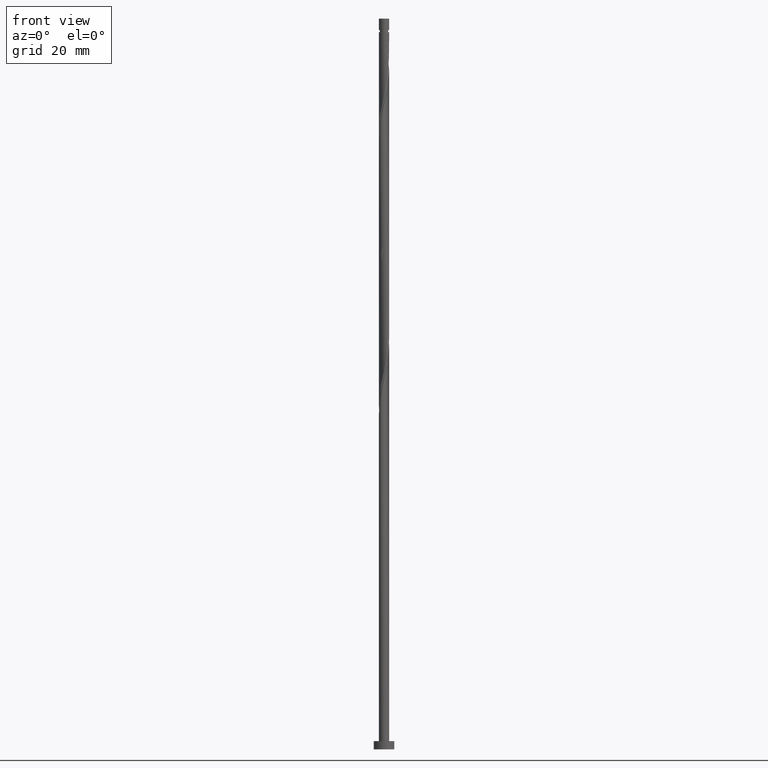
[diagram: clean part render]
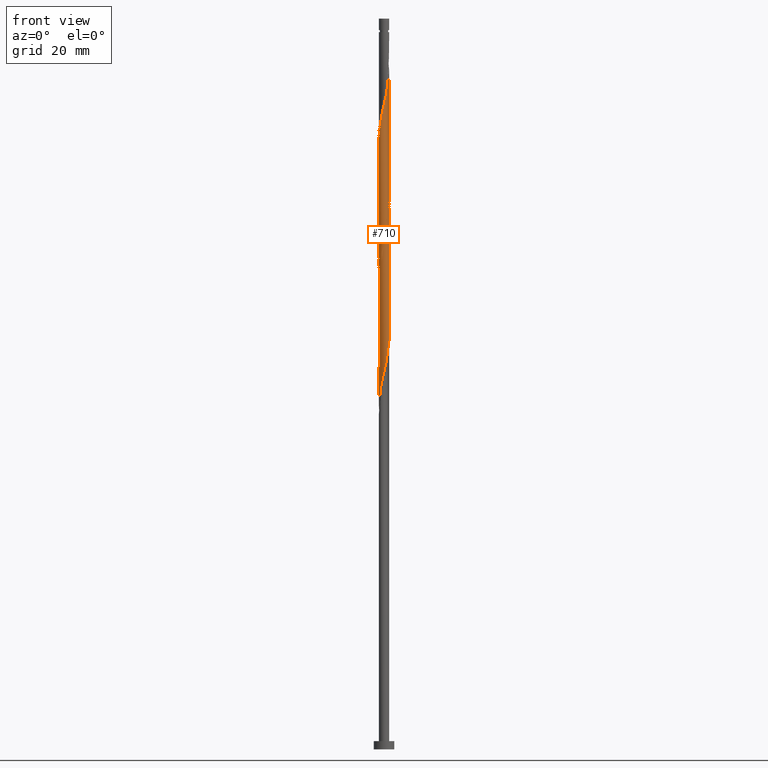
[diagram: same view with one face highlighted and labeled with its STEP entity id]
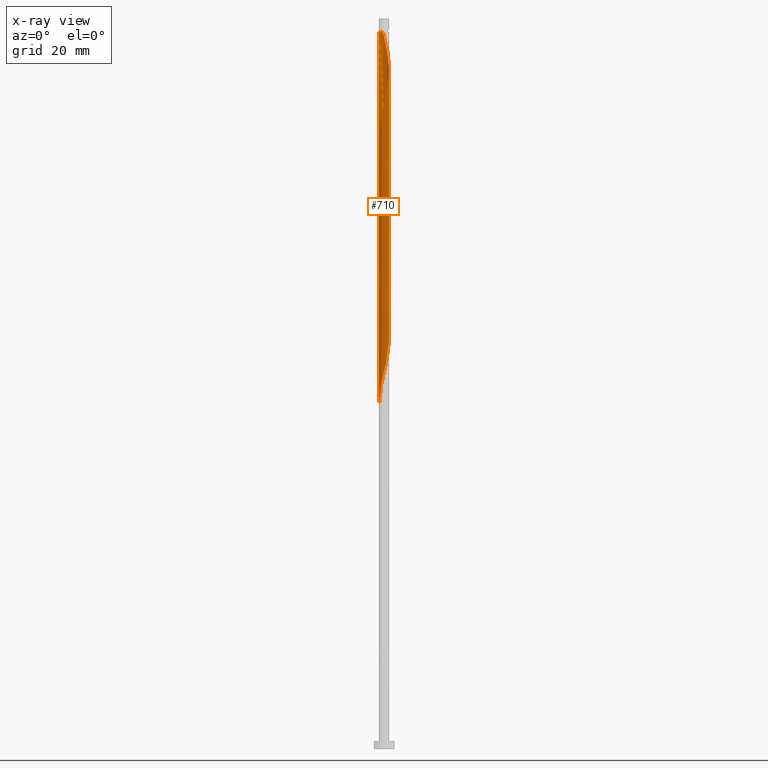
[diagram: x-ray of the same camera — body ghosted, the highlighted face saturated]
A machine part, front view. The second image highlights one B-rep face of the part: STEP entity #710.
The next image is the same camera in x-ray: the body ghosted, the highlighted face saturated — about 0% of this face is hidden behind the body in this view.
In plain terms, the highlighted cylindrical surface (bore or boss wall) has radius 1.25 mm, axis along (-0, -0, -1).
Its self-contained STEP definition (entity closure, byte-faithful):
#37 = CARTESIAN_POINT ( 'NONE',  ( 1.249999999999999778, -0.1256297269074015399, 132.8760128829884195 ) ) ;
#38 = CARTESIAN_POINT ( 'NONE',  ( 0.5531206224436048258, 1.132978120250636156, 170.5403170414120666 ) ) ;
#44 = CARTESIAN_POINT ( 'NONE',  ( 0.07678231466697284235, -1.247639561794343432, 125.4014281525231667 ) ) ;
#45 = CARTESIAN_POINT ( 'NONE',  ( 0.07678231466697481300, 1.247639561794345431, 172.6236503747453810 ) ) ;
#51 = EDGE_CURVE ( 'NONE', #1464, #522, #1592, .T. ) ;
#54 = CARTESIAN_POINT ( 'NONE',  ( -0.9365076899976109148, -0.8279210992451776496, 151.7903170414120666 ) ) ;
#55 = VERTEX_POINT ( 'NONE', #589 ) ;
#59 = CIRCLE ( 'NONE', #215, 1.249999999999990674 ) ;
#63 = CARTESIAN_POINT ( 'NONE',  ( -0.6903152159601410043, 1.042096397946900010, 111.5125392636342667 ) ) ;
#70 = CARTESIAN_POINT ( 'NONE',  ( -0.8279210992451769835, -0.9365076899976088054, 121.2347614858565095 ) ) ;
#71 = CARTESIAN_POINT ( 'NONE',  ( 1.042096397946900899, -0.6903152159601431137, 161.5125392636342951 ) ) ;
#95 = CARTESIAN_POINT ( 'NONE',  ( 1.224999999999999645, -0.2487468592766561293, 99.01253926363429514 ) ) ;
#109 = CARTESIAN_POINT ( 'NONE',  ( -0.5573243458342023171, -1.118878712613872839, 89.29031704141208081 ) ) ;
#113 = AXIS2_PLACEMENT_3D ( 'NONE', #611, #1215, #1359 ) ;
#143 = DIRECTION ( 'NONE',  ( -0.000000000000000000, -0.000000000000000000, -1.000000000000000000 ) ) ;
#159 = CARTESIAN_POINT ( 'NONE',  ( 0.8275098094766818457, 0.9512146756431651973, 169.1514281525230956 ) ) ;
#164 = CARTESIAN_POINT ( 'NONE',  ( 1.185254549274265434, 0.3970789007548220506, 135.1236503747453810 ) ) ;
#166 = CARTESIAN_POINT ( 'NONE',  ( 0.5531206224436024943, -1.132978120250634602, 127.4847614858564953 ) ) ;
#167 = CARTESIAN_POINT ( 'NONE',  ( 0.8279210992451776496, -0.9365076899976111369, 160.1236503747453526 ) ) ;
#172 = CARTESIAN_POINT ( 'NONE',  ( -0.3970789007548228278, 1.185254549274265212, 143.4569837080787238 ) ) ;
#174 = CARTESIAN_POINT ( 'NONE',  ( 1.192251854709206915, -0.4100211688212168082, 131.6514281525231809 ) ) ;
#175 = CARTESIAN_POINT ( 'NONE',  ( -1.118878712613875059, -0.5573243458342029832, 150.4014281525231240 ) ) ;
#180 = CARTESIAN_POINT ( 'NONE',  ( -1.247639561794343210, -0.07678231466697323093, 117.0680948191898523 ) ) ;
#181 = CARTESIAN_POINT ( 'NONE',  ( 1.185254549274266767, -0.3970789007548243266, 162.9014281525231524 ) ) ;
#188 = DIRECTION ( 'NONE',  ( -0.000000000000000000, -0.000000000000000000, -1.000000000000000000 ) ) ;
#204 = CARTESIAN_POINT ( 'NONE',  ( 1.237530978297895379, 0.2410371790660420788, 101.0958725969675953 ) ) ;
#213 = CARTESIAN_POINT ( 'NONE',  ( -0.8279210992451769835, -0.9365076899976088054, 87.90142815252316666 ) ) ;
#215 = AXIS2_PLACEMENT_3D ( 'NONE', #218, #966, #604 ) ;
#218 = CARTESIAN_POINT ( 'NONE',  ( 0.000000000000000000, 0.000000000000000000, 174.0125392636342667 ) ) ;
#222 = CARTESIAN_POINT ( 'NONE',  ( -1.042096397946899566, -0.6903152159601410043, 86.51253926363423830 ) ) ;
#234 = ORIENTED_EDGE ( 'NONE', *, *, #323, .T. ) ;
#240 = VERTEX_POINT ( 'NONE', #305 ) ;
#241 = ORIENTED_EDGE ( 'NONE', *, *, #51, .F. ) ;
#251 =( BOUNDED_CURVE ( )  B_SPLINE_CURVE ( 2, ( #801, #435, #1538, #525, #793, #941, #1191, #1043, #405, #1298, #172, #1056, #1036, #1447, #427, #1429, #311, #1416, #808, #540, #783, #1290, #164, #663, #654, #532, #1178 ),
 .UNSPECIFIED., .F., .T. ) 
 B_SPLINE_CURVE_WITH_KNOTS ( ( 3, 2, 2, 2, 2, 2, 2, 2, 2, 2, 2, 2, 2, 3 ),
 ( 0.4295317669814461836, 0.4375000000000000000, 0.4479166666666666852, 0.4583333333333333148, 0.4687500000000000000, 0.4791666666666666852, 0.4895833333333333148, 0.5000000000000000000, 0.5104166666666666297, 0.5208333333333333703, 0.5312500000000000000, 0.5416666666666666297, 0.5520833333333333703, 0.5545317669814462391 ),
 .UNSPECIFIED. ) 
 CURVE ( )  GEOMETRIC_REPRESENTATION_ITEM ( )  RATIONAL_B_SPLINE_CURVE ( ( 0.9062941362546590440, 0.9031415850403631262, 0.9090909090909385926, 0.9013135103398568493, 0.9090909090909385926, 0.9013135103398568493, 0.9090909090909385926, 0.9013135103398568493, 0.9090909090909385926, 0.9013135103398568493, 0.9090909090909385926, 0.9013135103398568493, 0.9090909090909385926, 0.9013135103398568493, 0.9090909090909385926, 0.9013135103398568493, 0.9090909090909385926, 0.9013135103398568493, 0.9090909090909385926, 0.9013135103398568493, 0.9090909090909385926, 0.9013135103398568493, 0.9090909090909385926, 0.9013135103398568493, 0.9090909090909385926, 0.9072628343904323156, 0.9062941362546588220 ) ) 
 REPRESENTATION_ITEM ( '' )  );
#282 = CARTESIAN_POINT ( 'NONE',  ( 0.3970789007548225502, -1.185254549274265434, 126.7903170414120524 ) ) ;
#283 = CARTESIAN_POINT ( 'NONE',  ( -0.07678231466697406360, -1.247639561794345431, 155.9569837080787238 ) ) ;
#290 = CARTESIAN_POINT ( 'NONE',  ( 1.250000000000000000, 1.080410926051534201E-15, 133.4094392521777195 ) ) ;
#299 = CARTESIAN_POINT ( 'NONE',  ( -0.8275098094766792922, 0.9512146756431647532, 112.2069837080787096 ) ) ;
#300 = CARTESIAN_POINT ( 'NONE',  ( 0.2410371790660443270, 1.237530978297896933, 171.9292059303009808 ) ) ;
#305 = CARTESIAN_POINT ( 'NONE',  ( -0.2487468592766901576, 1.225000000000343592, 174.0125392636342383 ) ) ;
#311 = CARTESIAN_POINT ( 'NONE',  ( 0.5573243458342032053, 1.118878712613872395, 139.2903170414120098 ) ) ;
#314 = CARTESIAN_POINT ( 'NONE',  ( 0.9365076899976088054, -0.8279210992451772055, 129.5680948191898096 ) ) ;
#315 = CARTESIAN_POINT ( 'NONE',  ( -0.8275098094766812906, -0.9512146756431656414, 152.4847614858564953 ) ) ;
#323 = EDGE_CURVE ( 'NONE', #472, #1108, #445, .T. ) ;
#325 = CARTESIAN_POINT ( 'NONE',  ( -0.08747254973209638018, -1.257748145290791930, 91.37365037474539520 ) ) ;
#332 = CARTESIAN_POINT ( 'NONE',  ( -0.9512146756431650862, -0.8275098094766789592, 87.20698370807869537 ) ) ;
#335 = CARTESIAN_POINT ( 'NONE',  ( -1.250000000000000000, 0.000000000000000000, 177.3000000000000114 ) ) ;
#339 = CARTESIAN_POINT ( 'NONE',  ( -0.7046275228471888807, -1.045505570518538763, 88.59587259696759531 ) ) ;
#343 = EDGE_CURVE ( 'NONE', #1032, #1108, #939, .T. ) ;
#347 = CARTESIAN_POINT ( 'NONE',  ( 1.257748145290791930, -0.08747254973209644957, 99.70698370807872379 ) ) ;
#354 = CARTESIAN_POINT ( 'NONE',  ( -1.250000000000000000, -1.416871076032980706E-15, 83.40943925217766264 ) ) ;
#405 = CARTESIAN_POINT ( 'NONE',  ( -0.6903152159601410043, 1.042096397946900010, 144.8458725969676095 ) ) ;
#413 = CARTESIAN_POINT ( 'NONE',  ( 1.118878712613872395, -0.5573243458342032053, 130.9569837080787238 ) ) ;
#414 = CARTESIAN_POINT ( 'NONE',  ( 1.045505570518540983, 0.7046275228471891028, 167.7625392636342383 ) ) ;
#421 = CARTESIAN_POINT ( 'NONE',  ( -1.042096397946899566, -0.6903152159601410043, 119.8458725969676095 ) ) ;
#427 = CARTESIAN_POINT ( 'NONE',  ( 0.2487468592766561293, 1.224999999999999645, 140.6792059303009808 ) ) ;
#435 = CARTESIAN_POINT ( 'NONE',  ( -1.250000000000000000, 0.1256297269074011791, 149.5426795496550483 ) ) ;
#437 = CARTESIAN_POINT ( 'NONE',  ( -0.2410371790660428004, 1.237530978297895379, 109.4292059303009239 ) ) ;
#445 = LINE ( 'NONE', #810, #1324 ) ;
#456 = CARTESIAN_POINT ( 'NONE',  ( -1.249999999999999556, -0.03842743957209191624, 83.57260294020581171 ) ) ;
#462 = CARTESIAN_POINT ( 'NONE',  ( 1.185254549274265434, 0.3970789007548220506, 101.7903170414120382 ) ) ;
#472 = VERTEX_POINT ( 'NONE', #1201 ) ;
#479 = CARTESIAN_POINT ( 'NONE',  ( 1.045505570518538319, -0.7046275228471893248, 96.92920593030092391 ) ) ;
#487 = CARTESIAN_POINT ( 'NONE',  ( 0.6903152159601404492, -1.042096397946900233, 94.84587259696760952 ) ) ;
#522 = VERTEX_POINT ( 'NONE', #1321 ) ;
#525 = CARTESIAN_POINT ( 'NONE',  ( -1.192251854709207581, 0.4100211688212158090, 148.3180948191897812 ) ) ;
#532 = CARTESIAN_POINT ( 'NONE',  ( 1.249999999999999556, 0.03842743957209152073, 133.5726029402058543 ) ) ;
#534 = CARTESIAN_POINT ( 'NONE',  ( -1.185254549274265212, -0.3970789007548226612, 118.4569837080786954 ) ) ;
#535 = CARTESIAN_POINT ( 'NONE',  ( 0.3970789007548243266, 1.185254549274266545, 171.2347614858564953 ) ) ;
#537 = FACE_OUTER_BOUND ( 'NONE', #568, .T. ) ;
#540 = CARTESIAN_POINT ( 'NONE',  ( 0.9512146756431650862, 0.8275098094766788481, 137.2069837080787238 ) ) ;
#543 = CARTESIAN_POINT ( 'NONE',  ( 0.9512146756431656414, -0.8275098094766812906, 160.8180948191898381 ) ) ;
#547 = CARTESIAN_POINT ( 'NONE',  ( -0.4100211688212162531, -1.192251854709207581, 123.3180948191898239 ) ) ;
#548 = CARTESIAN_POINT ( 'NONE',  ( -0.5531206224436046037, -1.132978120250636822, 153.8736503747453810 ) ) ;
#556 = CARTESIAN_POINT ( 'NONE',  ( 0.2487468592766561293, 1.224999999999999645, 107.3458725969676237 ) ) ;
#557 = CARTESIAN_POINT ( 'NONE',  ( -1.045505570518540983, -0.7046275228471895469, 151.0958725969676379 ) ) ;
#563 = CARTESIAN_POINT ( 'NONE',  ( -1.192251854709207581, 0.4100211688212158090, 114.9847614858564668 ) ) ;
#568 = EDGE_LOOP ( 'NONE', ( #241, #597, #993, #234, #967, #994, #857, #581 ) ) ;
#579 = EDGE_CURVE ( 'NONE', #522, #1032, #251, .T. ) ;
#581 = ORIENTED_EDGE ( 'NONE', *, *, #579, .F. ) ;
#582 = VECTOR ( 'NONE', #143, 1000.000000000000000 ) ;
#585 = CARTESIAN_POINT ( 'NONE',  ( -1.185254549274265212, -0.3970789007548226612, 85.12365037474540941 ) ) ;
#589 = CARTESIAN_POINT ( 'NONE',  ( 1.250000000000000000, 1.530808498934191571E-16, 174.0125392636342667 ) ) ;
#594 = CARTESIAN_POINT ( 'NONE',  ( 1.132978120250635490, 0.5531206224436018282, 102.4847614858564953 ) ) ;
#597 = ORIENTED_EDGE ( 'NONE', *, *, #962, .T. ) ;
#604 = DIRECTION ( 'NONE',  ( -1.000000000000000000, 0.000000000000000000, 0.000000000000000000 ) ) ;
#611 = CARTESIAN_POINT ( 'NONE',  ( 0.000000000000000000, 0.000000000000000000, 177.3000000000000114 ) ) ;
#654 = CARTESIAN_POINT ( 'NONE',  ( 1.247639561794343432, 0.07678231466697275909, 133.7347614858564953 ) ) ;
#657 = CARTESIAN_POINT ( 'NONE',  ( -0.08747254973209638018, -1.257748145290791930, 124.7069837080787096 ) ) ;
#663 = CARTESIAN_POINT ( 'NONE',  ( 1.237530978297895379, 0.2410371790660420788, 134.4292059303009523 ) ) ;
#665 = CARTESIAN_POINT ( 'NONE',  ( 0.5573243458342032053, 1.118878712613872395, 105.9569837080786954 ) ) ;
#666 = CARTESIAN_POINT ( 'NONE',  ( 1.247639561794345431, -0.07678231466697474361, 164.2903170414120382 ) ) ;
#672 = CARTESIAN_POINT ( 'NONE',  ( 0.4100211688212168637, 1.192251854709206915, 106.6514281525231667 ) ) ;
#680 = CARTESIAN_POINT ( 'NONE',  ( -0.9365076899976090274, 0.8279210992451766504, 112.9014281525231524 ) ) ;
#706 = CARTESIAN_POINT ( 'NONE',  ( 0.9365076899976088054, -0.8279210992451772055, 96.23476148585648104 ) ) ;
#710 = ADVANCED_FACE ( 'NONE', ( #537 ), #1343, .T. ) ;
#714 = CARTESIAN_POINT ( 'NONE',  ( 0.2410371790660420788, -1.237530978297895379, 92.76253926363423830 ) ) ;
#729 = CARTESIAN_POINT ( 'NONE',  ( -0.2487468592766560183, -1.224999999999999645, 90.67920593030092391 ) ) ;
#783 = CARTESIAN_POINT ( 'NONE',  ( 1.042096397946900010, 0.6903152159601406712, 136.5125392636342951 ) ) ;
#786 = CARTESIAN_POINT ( 'NONE',  ( 0.2410371790660420788, -1.237530978297895379, 126.0958725969675811 ) ) ;
#787 = CARTESIAN_POINT ( 'NONE',  ( 1.118878712613875503, 0.5573243458342023171, 167.0680948191898381 ) ) ;
#793 = CARTESIAN_POINT ( 'NONE',  ( -1.118878712613872839, 0.5573243458342023171, 147.6236503747454378 ) ) ;
#797 = CARTESIAN_POINT ( 'NONE',  ( 0.5573243458342025392, -1.118878712613875503, 158.7347614858564953 ) ) ;
#801 = CARTESIAN_POINT ( 'NONE',  ( -1.249999999999999556, -9.346115277262403884E-17, 150.0761059188443198 ) ) ;
#803 = CARTESIAN_POINT ( 'NONE',  ( 1.224999999999999645, -0.2487468592766561293, 132.3458725969676095 ) ) ;
#808 = CARTESIAN_POINT ( 'NONE',  ( 0.8279210992451772055, 0.9365076899976084723, 137.9014281525231524 ) ) ;
#810 = CARTESIAN_POINT ( 'NONE',  ( -1.250000000000000000, 0.000000000000000000, 177.3000000000000114 ) ) ;
#811 = CARTESIAN_POINT ( 'NONE',  ( -1.250000000000000444, -0.1256297269074092837, 148.4823989776135704 ) ) ;
#819 = CARTESIAN_POINT ( 'NONE',  ( 0.08747254973209603324, 1.257748145290791930, 108.0403170414119955 ) ) ;
#820 = CARTESIAN_POINT ( 'NONE',  ( -1.250000000000001776, 7.177816532937473053E-16, 147.9489726084242704 ) ) ;
#841 = DIRECTION ( 'NONE',  ( -0.000000000000000000, -0.000000000000000000, -1.000000000000000000 ) ) ;
#842 = CARTESIAN_POINT ( 'NONE',  ( 1.250000000000000000, 1.530808498934191571E-16, 177.3000000000000114 ) ) ;
#845 = CARTESIAN_POINT ( 'NONE',  ( -1.247639561794343210, -0.07678231466697323093, 83.73476148585649526 ) ) ;
#853 = CARTESIAN_POINT ( 'NONE',  ( 0.8275098094766788481, -0.9512146756431648642, 95.54031704141205239 ) ) ;
#857 = ORIENTED_EDGE ( 'NONE', *, *, #1080, .T. ) ;
#914 = CARTESIAN_POINT ( 'NONE',  ( -1.225000000000001643, -0.2487468592766560738, 149.0125392636343236 ) ) ;
#926 = CARTESIAN_POINT ( 'NONE',  ( -1.237530978297895157, -0.2410371790660424951, 117.7625392636342951 ) ) ;
#927 = CARTESIAN_POINT ( 'NONE',  ( 0.4100211688212159755, -1.192251854709210024, 158.0403170414120382 ) ) ;
#939 =( BOUNDED_CURVE ( )  B_SPLINE_CURVE ( 2, ( #290, #37, #803, #174, #413, #1316, #314, #1194, #1058, #166, #282, #786, #44, #657, #1203, #547, #1449, #1075, #70, #1293, #421, #1173, #534, #926, #180, #1555, #1548, #563, #1563, #1432, #680, #299, #63, #1045, #1309, #437, #1301, #819, #556, #672, #665, #1186, #1573, #1180, #1598, #594, #462, #204, #1480, #347, #95, #1467, #970, #479, #706, #853, #487, #1474, #1340, #714, #1241, #325, #729, #1611, #109, #339, #213, #332, #222, #1621, #585, #1111, #845, #456, #354 ),
 .UNSPECIFIED., .F., .T. ) 
 B_SPLINE_CURVE_WITH_KNOTS ( ( 3, 2, 2, 2, 2, 2, 2, 2, 2, 2, 2, 2, 2, 2, 2, 2, 2, 2, 2, 2, 2, 2, 2, 2, 2, 2, 2, 2, 2, 2, 2, 2, 2, 2, 2, 2, 2, 3 ),
 ( 0.5545317669814462391, 0.5625000000000000000, 0.5729166666666666297, 0.5833333333333333703, 0.5937500000000000000, 0.6041666666666666297, 0.6145833333333333703, 0.6250000000000000000, 0.6354166666666666297, 0.6458333333333333703, 0.6562500000000000000, 0.6666666666666666297, 0.6770833333333333703, 0.6875000000000000000, 0.6979166666666666297, 0.7083333333333333703, 0.7187500000000000000, 0.7291666666666666297, 0.7395833333333333703, 0.7500000000000000000, 0.7604166666666666297, 0.7708333333333333703, 0.7812500000000000000, 0.7916666666666666297, 0.8020833333333333703, 0.8125000000000000000, 0.8229166666666666297, 0.8333333333333333703, 0.8437500000000000000, 0.8541666666666666297, 0.8645833333333333703, 0.8750000000000000000, 0.8854166666666666297, 0.8958333333333332593, 0.9062500000000000000, 0.9166666666666667407, 0.9270833333333332593, 0.9295317669814462391 ),
 .UNSPECIFIED. ) 
 CURVE ( )  GEOMETRIC_REPRESENTATION_ITEM ( )  RATIONAL_B_SPLINE_CURVE ( ( 0.9062941362546588220, 0.9031415850403630152, 0.9090909090909385926, 0.9013135103398568493, 0.9090909090909385926, 0.9013135103398568493, 0.9090909090909385926, 0.9013135103398568493, 0.9090909090909385926, 0.9013135103398568493, 0.9090909090909385926, 0.9013135103398568493, 0.9090909090909385926, 0.9013135103398568493, 0.9090909090909385926, 0.9013135103398568493, 0.9090909090909385926, 0.9013135103398568493, 0.9090909090909385926, 0.9013135103398568493, 0.9090909090909385926, 0.9013135103398568493, 0.9090909090909385926, 0.9013135103398568493, 0.9090909090909385926, 0.9013135103398568493, 0.9090909090909385926, 0.9013135103398568493, 0.9090909090909385926, 0.9013135103398568493, 0.9090909090909385926, 0.9013135103398568493, 0.9090909090909385926, 0.9013135103398568493, 0.9090909090909385926, 0.9013135103398568493, 0.9090909090909385926, 0.9013135103398568493, 0.9090909090909385926, 0.9013135103398568493, 0.9090909090909385926, 0.9013135103398568493, 0.9090909090909385926, 0.9013135103398568493, 0.9090909090909385926, 0.9013135103398568493, 0.9090909090909385926, 0.9013135103398568493, 0.9090909090909385926, 0.9013135103398568493, 0.9090909090909385926, 0.9013135103398568493, 0.9090909090909385926, 0.9013135103398568493, 0.9090909090909385926, 0.9013135103398568493, 0.9090909090909385926, 0.9013135103398568493, 0.9090909090909385926, 0.9013135103398568493, 0.9090909090909385926, 0.9013135103398568493, 0.9090909090909385926, 0.9013135103398568493, 0.9090909090909385926, 0.9013135103398568493, 0.9090909090909385926, 0.9013135103398568493, 0.9090909090909385926, 0.9013135103398568493, 0.9090909090909385926, 0.9013135103398568493, 0.9090909090909385926, 0.9072628343904323156, 0.9062941362546588220 ) ) 
 REPRESENTATION_ITEM ( '' )  );
#941 = CARTESIAN_POINT ( 'NONE',  ( -1.045505570518538763, 0.7046275228471886587, 146.9292059303009239 ) ) ;
#962 = EDGE_CURVE ( 'NONE', #1464, #240, #59, .T. ) ;
#966 = DIRECTION ( 'NONE',  ( -0.000000000000000000, -0.000000000000000000, -1.000000000000000000 ) ) ;
#967 = ORIENTED_EDGE ( 'NONE', *, *, #343, .F. ) ;
#970 = CARTESIAN_POINT ( 'NONE',  ( 1.118878712613872395, -0.5573243458342032053, 97.62365037474539520 ) ) ;
#984 = VECTOR ( 'NONE', #841, 1000.000000000000000 ) ;
#993 = ORIENTED_EDGE ( 'NONE', *, *, #1495, .F. ) ;
#994 = ORIENTED_EDGE ( 'NONE', *, *, #1080, .F. ) ;
#1016 = CARTESIAN_POINT ( 'NONE',  ( -1.250000000000000000, -1.416871076032980706E-15, 83.40943925217766264 ) ) ;
#1032 = VERTEX_POINT ( 'NONE', #1336 ) ;
#1036 = CARTESIAN_POINT ( 'NONE',  ( -0.07678231466697338359, 1.247639561794343432, 142.0680948191898381 ) ) ;
#1040 = CARTESIAN_POINT ( 'NONE',  ( 1.257748145290794151, 0.08747254973209481199, 164.9847614858564668 ) ) ;
#1043 = CARTESIAN_POINT ( 'NONE',  ( -0.8275098094766792922, 0.9512146756431647532, 145.5403170414120666 ) ) ;
#1045 = CARTESIAN_POINT ( 'NONE',  ( -0.5531206224436029384, 1.132978120250634380, 110.8180948191898381 ) ) ;
#1046 = CARTESIAN_POINT ( 'NONE',  ( -0.08747254973209467321, 1.257748145290794151, 173.3180948191898096 ) ) ;
#1053 = CARTESIAN_POINT ( 'NONE',  ( -0.2487468592766901576, 1.225000000000343592, 174.0125392636342383 ) ) ;
#1056 = CARTESIAN_POINT ( 'NONE',  ( -0.2410371790660428004, 1.237530978297895379, 142.7625392636342667 ) ) ;
#1058 = CARTESIAN_POINT ( 'NONE',  ( 0.6903152159601404492, -1.042096397946900233, 128.1792059303009239 ) ) ;
#1059 = CARTESIAN_POINT ( 'NONE',  ( 0.2487468592766559627, -1.225000000000001643, 157.3458725969676379 ) ) ;
#1069 = CARTESIAN_POINT ( 'NONE',  ( 1.237530978297896933, -0.2410371790660442159, 163.5958725969675527 ) ) ;
#1075 = CARTESIAN_POINT ( 'NONE',  ( -0.7046275228471888807, -1.045505570518538763, 121.9292059303009239 ) ) ;
#1080 = EDGE_CURVE ( 'NONE', #55, #1032, #1088, .T. ) ;
#1088 = LINE ( 'NONE', #842, #582 ) ;
#1108 = VERTEX_POINT ( 'NONE', #1016 ) ;
#1111 = CARTESIAN_POINT ( 'NONE',  ( -1.237530978297895157, -0.2410371790660424951, 84.42920593030095233 ) ) ;
#1173 = CARTESIAN_POINT ( 'NONE',  ( -1.132978120250634602, -0.5531206224436024943, 119.1514281525231524 ) ) ;
#1174 = CARTESIAN_POINT ( 'NONE',  ( 1.132978120250636156, -0.5531206224436048258, 162.2069837080786954 ) ) ;
#1178 = CARTESIAN_POINT ( 'NONE',  ( 1.250000000000000000, 1.080410926051534201E-15, 133.4094392521777195 ) ) ;
#1180 = CARTESIAN_POINT ( 'NONE',  ( 0.9512146756431650862, 0.8275098094766788481, 103.8736503747453384 ) ) ;
#1186 = CARTESIAN_POINT ( 'NONE',  ( 0.7046275228471893248, 1.045505570518538319, 105.2625392636342525 ) ) ;
#1187 = CARTESIAN_POINT ( 'NONE',  ( -0.6903152159601426696, -1.042096397946901565, 153.1792059303008955 ) ) ;
#1191 = CARTESIAN_POINT ( 'NONE',  ( -0.9365076899976090274, 0.8279210992451766504, 146.2347614858564668 ) ) ;
#1194 = CARTESIAN_POINT ( 'NONE',  ( 0.8275098094766788481, -0.9512146756431648642, 128.8736503747453526 ) ) ;
#1195 = CARTESIAN_POINT ( 'NONE',  ( -1.249999999999990674, 0.000000000000000000, 174.0125392636342667 ) ) ;
#1201 = CARTESIAN_POINT ( 'NONE',  ( -1.250000000000001776, 7.177816532937473053E-16, 147.9489726084242704 ) ) ;
#1203 = CARTESIAN_POINT ( 'NONE',  ( -0.2487468592766560183, -1.224999999999999645, 124.0125392636342525 ) ) ;
#1215 = DIRECTION ( 'NONE',  ( -0.000000000000000000, -0.000000000000000000, -1.000000000000000000 ) ) ;
#1241 = CARTESIAN_POINT ( 'NONE',  ( 0.07678231466697284235, -1.247639561794343432, 92.06809481918983806 ) ) ;
#1290 = CARTESIAN_POINT ( 'NONE',  ( 1.132978120250635490, 0.5531206224436018282, 135.8180948191898096 ) ) ;
#1293 = CARTESIAN_POINT ( 'NONE',  ( -0.9512146756431650862, -0.8275098094766789592, 120.5403170414120240 ) ) ;
#1294 = CARTESIAN_POINT ( 'NONE',  ( 0.9365076899976113589, 0.8279210992451772055, 168.4569837080787522 ) ) ;
#1298 = CARTESIAN_POINT ( 'NONE',  ( -0.5531206224436029384, 1.132978120250634380, 144.1514281525231524 ) ) ;
#1301 = CARTESIAN_POINT ( 'NONE',  ( -0.07678231466697338359, 1.247639561794343432, 108.7347614858564526 ) ) ;
#1302 = CARTESIAN_POINT ( 'NONE',  ( -0.3970789007548242155, -1.185254549274266767, 154.5680948191897812 ) ) ;
#1309 = CARTESIAN_POINT ( 'NONE',  ( -0.3970789007548228278, 1.185254549274265212, 110.1236503747453810 ) ) ;
#1310 = CARTESIAN_POINT ( 'NONE',  ( -0.2410371790660436331, -1.237530978297897155, 155.2625392636343236 ) ) ;
#1316 = CARTESIAN_POINT ( 'NONE',  ( 1.045505570518538319, -0.7046275228471893248, 130.2625392636342667 ) ) ;
#1317 = CARTESIAN_POINT ( 'NONE',  ( -1.192251854709210024, -0.4100211688212160865, 149.7069837080787806 ) ) ;
#1321 = CARTESIAN_POINT ( 'NONE',  ( -1.249999999999999556, -9.346115277262403884E-17, 150.0761059188443198 ) ) ;
#1324 = VECTOR ( 'NONE', #188, 1000.000000000000000 ) ;
#1326 = CARTESIAN_POINT ( 'NONE',  ( 0.08747254973209546425, -1.257748145290794151, 156.6514281525231809 ) ) ;
#1336 = CARTESIAN_POINT ( 'NONE',  ( 1.250000000000000000, 1.080410926051534201E-15, 133.4094392521777195 ) ) ;
#1340 = CARTESIAN_POINT ( 'NONE',  ( 0.3970789007548225502, -1.185254549274265434, 93.45698370807872379 ) ) ;
#1343 = CYLINDRICAL_SURFACE ( 'NONE', #113, 1.250000000000000000 ) ;
#1359 = DIRECTION ( 'NONE',  ( -1.000000000000000000, 0.000000000000000000, 0.000000000000000000 ) ) ;
#1374 =( BOUNDED_CURVE ( )  B_SPLINE_CURVE ( 2, ( #820, #811, #914, #1317, #175, #557, #54, #315, #1187, #548, #1302, #1310, #283, #1326, #1059, #927, #797, #1433, #167, #543, #71, #1174, #181, #1069, #666, #1040, #1541, #1419, #787, #414, #1294, #159, #1426, #38, #535, #300, #45, #1046, #1053 ),
 .UNSPECIFIED., .F., .T. ) 
 B_SPLINE_CURVE_WITH_KNOTS ( ( 3, 2, 2, 2, 2, 2, 2, 2, 2, 2, 2, 2, 2, 2, 2, 2, 2, 2, 2, 3 ),
 ( 0.5545317669814466832, 0.5625000000000000000, 0.5729166666666667407, 0.5833333333333332593, 0.5937500000000000000, 0.6041666666666667407, 0.6145833333333332593, 0.6250000000000000000, 0.6354166666666667407, 0.6458333333333332593, 0.6562500000000000000, 0.6666666666666667407, 0.6770833333333332593, 0.6875000000000000000, 0.6979166666666667407, 0.7083333333333332593, 0.7187500000000000000, 0.7291666666666667407, 0.7395833333333332593, 0.7500000000000000000 ),
 .UNSPECIFIED. ) 
 CURVE ( )  GEOMETRIC_REPRESENTATION_ITEM ( )  RATIONAL_B_SPLINE_CURVE ( ( 0.9062941362546653723, 0.9031415850403702317, 0.9090909090909453649, 0.9013135103398636216, 0.9090909090909453649, 0.9013135103398636216, 0.9090909090909453649, 0.9013135103398636216, 0.9090909090909453649, 0.9013135103398636216, 0.9090909090909453649, 0.9013135103398636216, 0.9090909090909453649, 0.9013135103398636216, 0.9090909090909453649, 0.9013135103398636216, 0.9090909090909453649, 0.9013135103398636216, 0.9090909090909453649, 0.9013135103398636216, 0.9090909090909453649, 0.9013135103398636216, 0.9090909090909453649, 0.9013135103398636216, 0.9090909090909453649, 0.9013135103398636216, 0.9090909090909453649, 0.9013135103398636216, 0.9090909090909453649, 0.9013135103398636216, 0.9090909090909453649, 0.9013135103398636216, 0.9090909090909453649, 0.9013135103398636216, 0.9090909090909453649, 0.9013135103398636216, 0.9090909090909453649, 0.9013135103398636216, 0.9090909090909453649 ) ) 
 REPRESENTATION_ITEM ( '' )  );
#1416 = CARTESIAN_POINT ( 'NONE',  ( 0.7046275228471893248, 1.045505570518538319, 138.5958725969675811 ) ) ;
#1419 = CARTESIAN_POINT ( 'NONE',  ( 1.192251854709210024, 0.4100211688212159755, 166.3736503747453810 ) ) ;
#1426 = CARTESIAN_POINT ( 'NONE',  ( 0.6903152159601426696, 1.042096397946901121, 169.8458725969675811 ) ) ;
#1429 = CARTESIAN_POINT ( 'NONE',  ( 0.4100211688212168637, 1.192251854709206915, 139.9847614858564384 ) ) ;
#1432 = CARTESIAN_POINT ( 'NONE',  ( -1.045505570518538763, 0.7046275228471886587, 113.5958725969676095 ) ) ;
#1433 = CARTESIAN_POINT ( 'NONE',  ( 0.7046275228471893248, -1.045505570518540983, 159.4292059303009523 ) ) ;
#1447 = CARTESIAN_POINT ( 'NONE',  ( 0.08747254973209603324, 1.257748145290791930, 141.3736503747454094 ) ) ;
#1449 = CARTESIAN_POINT ( 'NONE',  ( -0.5573243458342023171, -1.118878712613872839, 122.6236503747453668 ) ) ;
#1464 = VERTEX_POINT ( 'NONE', #1195 ) ;
#1467 = CARTESIAN_POINT ( 'NONE',  ( 1.192251854709206915, -0.4100211688212168082, 98.31809481918982385 ) ) ;
#1474 = CARTESIAN_POINT ( 'NONE',  ( 0.5531206224436024943, -1.132978120250634602, 94.15142815252315245 ) ) ;
#1480 = CARTESIAN_POINT ( 'NONE',  ( 1.247639561794343432, 0.07678231466697275909, 100.4014281525231667 ) ) ;
#1495 = EDGE_CURVE ( 'NONE', #472, #240, #1374, .T. ) ;
#1538 = CARTESIAN_POINT ( 'NONE',  ( -1.224999999999999645, 0.2487468592766559072, 149.0125392636342667 ) ) ;
#1541 = CARTESIAN_POINT ( 'NONE',  ( 1.225000000000001643, 0.2487468592766559072, 165.6792059303010092 ) ) ;
#1548 = CARTESIAN_POINT ( 'NONE',  ( -1.224999999999999645, 0.2487468592766559072, 115.6792059303009381 ) ) ;
#1555 = CARTESIAN_POINT ( 'NONE',  ( -1.257748145290791930, 0.08747254973209631079, 116.3736503747453668 ) ) ;
#1563 = CARTESIAN_POINT ( 'NONE',  ( -1.118878712613872839, 0.5573243458342023171, 114.2903170414120098 ) ) ;
#1573 = CARTESIAN_POINT ( 'NONE',  ( 0.8279210992451772055, 0.9365076899976084723, 104.5680948191897954 ) ) ;
#1592 = LINE ( 'NONE', #335, #984 ) ;
#1598 = CARTESIAN_POINT ( 'NONE',  ( 1.042096397946900010, 0.6903152159601406712, 103.1792059303009523 ) ) ;
#1611 = CARTESIAN_POINT ( 'NONE',  ( -0.4100211688212162531, -1.192251854709207581, 89.98476148585648104 ) ) ;
#1621 = CARTESIAN_POINT ( 'NONE',  ( -1.132978120250634602, -0.5531206224436024943, 85.81809481918982385 ) ) ;